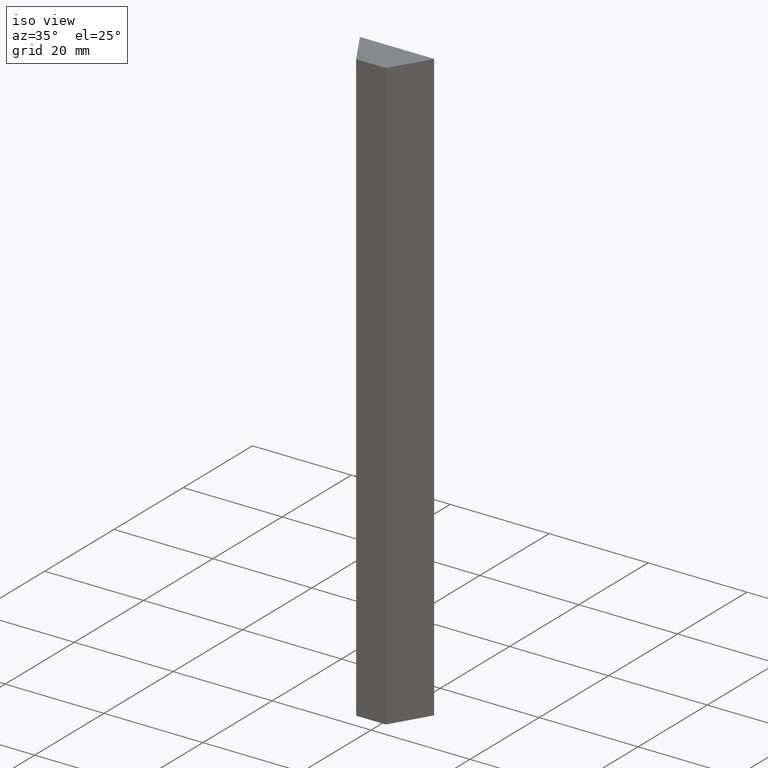
[diagram: clean part render]
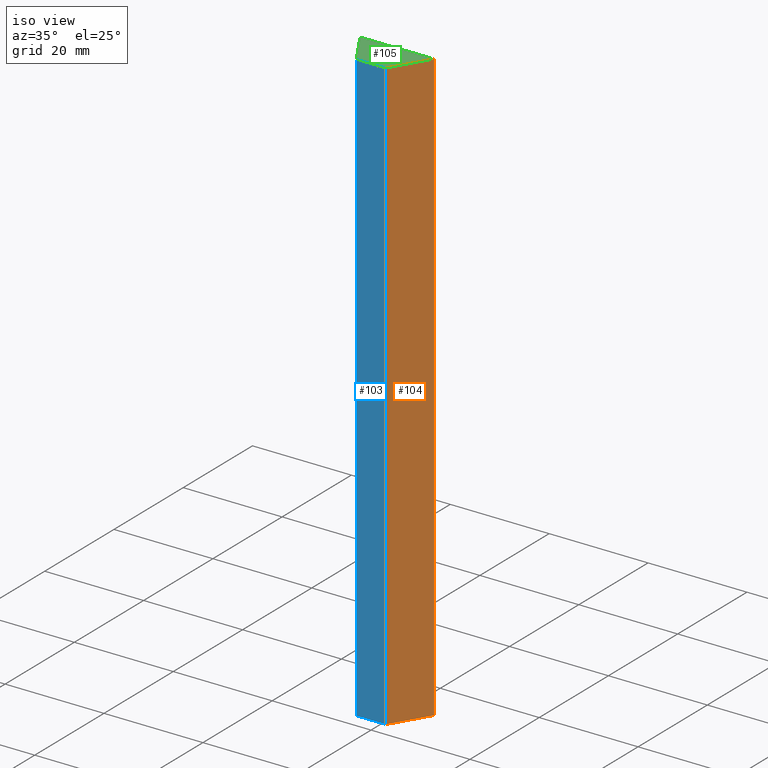
[diagram: same view with three faces highlighted in distinct colors, each labeled with its STEP entity id]
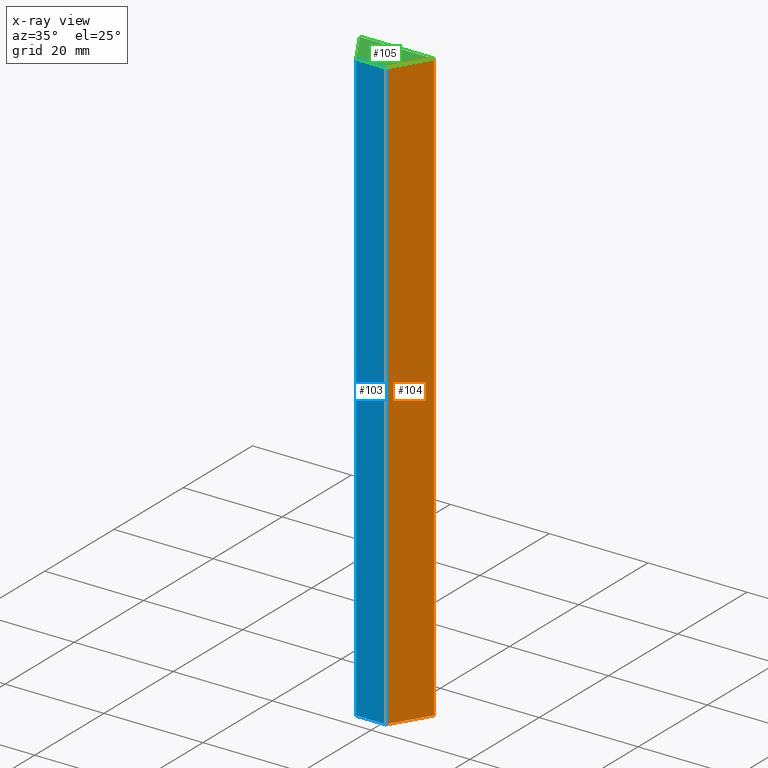
[diagram: x-ray of the same camera — body ghosted, the three highlighted faces saturated]
A machine part, iso view with three faces highlighted in distinct colors.
The next image is the same camera in x-ray (body ghosted, the three faces saturated) — at least one of them is partly hidden behind the body in this view.
Their STEP definitions:

[orange] entity #104 — the highlighted planar face has unit normal (0.8575, -0.5145, 0).
#18=FACE_OUTER_BOUND('',#24,.T.);
#24=EDGE_LOOP('',(#83,#84,#85,#86));
#28=LINE('',#165,#40);
#36=LINE('',#180,#48);
#37=LINE('',#182,#49);
#38=LINE('',#183,#50);
#40=VECTOR('',#138,10.);
#48=VECTOR('',#150,10.);
#49=VECTOR('',#153,10.);
#50=VECTOR('',#154,10.);
#51=VERTEX_POINT('',#161);
#53=VERTEX_POINT('',#164);
#57=VERTEX_POINT('',#176);
#58=VERTEX_POINT('',#178);
#60=EDGE_CURVE('',#51,#53,#28,.T.);
#68=EDGE_CURVE('',#57,#58,#36,.T.);
#69=EDGE_CURVE('',#57,#51,#37,.T.);
#70=EDGE_CURVE('',#53,#58,#38,.T.);
#83=ORIENTED_EDGE('',*,*,#69,.F.);
#84=ORIENTED_EDGE('',*,*,#68,.T.);
#85=ORIENTED_EDGE('',*,*,#70,.F.);
#86=ORIENTED_EDGE('',*,*,#60,.F.);
#98=PLANE('',#130);
#104=ADVANCED_FACE('',(#18),#98,.T.);
#130=AXIS2_PLACEMENT_3D('',#181,#151,#152);
#138=DIRECTION('',(0.,0.,-1.));
#150=DIRECTION('',(0.,0.,-1.));
#151=DIRECTION('center_axis',(0.857492925712544,-0.514495755427527,0.));
#152=DIRECTION('ref_axis',(-0.514495755427527,-0.857492925712544,0.));
#153=DIRECTION('',(0.514495755427527,0.857492925712544,0.));
#154=DIRECTION('',(-0.514495755427527,-0.857492925712544,0.));
#161=CARTESIAN_POINT('',(7.5,7.5,0.));
#164=CARTESIAN_POINT('',(7.5,7.5,-120.));
#165=CARTESIAN_POINT('',(7.5,7.5,0.));
#176=CARTESIAN_POINT('',(3.,0.,0.));
#178=CARTESIAN_POINT('',(3.,0.,-120.));
#180=CARTESIAN_POINT('',(3.,0.,0.));
#181=CARTESIAN_POINT('Origin',(7.5,7.5,0.));
#182=CARTESIAN_POINT('',(3.,0.,0.));
#183=CARTESIAN_POINT('',(3.,0.,-120.));

[blue] entity #103 — the highlighted planar face has unit normal (0, -1, 0).
#17=FACE_OUTER_BOUND('',#23,.T.);
#23=EDGE_LOOP('',(#79,#80,#81,#82));
#33=LINE('',#174,#45);
#34=LINE('',#177,#46);
#35=LINE('',#179,#47);
#36=LINE('',#180,#48);
#45=VECTOR('',#145,10.);
#46=VECTOR('',#148,10.);
#47=VECTOR('',#149,10.);
#48=VECTOR('',#150,10.);
#55=VERTEX_POINT('',#170);
#56=VERTEX_POINT('',#172);
#57=VERTEX_POINT('',#176);
#58=VERTEX_POINT('',#178);
#65=EDGE_CURVE('',#55,#56,#33,.T.);
#66=EDGE_CURVE('',#55,#57,#34,.T.);
#67=EDGE_CURVE('',#58,#56,#35,.T.);
#68=EDGE_CURVE('',#57,#58,#36,.T.);
#79=ORIENTED_EDGE('',*,*,#66,.F.);
#80=ORIENTED_EDGE('',*,*,#65,.T.);
#81=ORIENTED_EDGE('',*,*,#67,.F.);
#82=ORIENTED_EDGE('',*,*,#68,.F.);
#97=PLANE('',#129);
#103=ADVANCED_FACE('',(#17),#97,.T.);
#129=AXIS2_PLACEMENT_3D('',#175,#146,#147);
#145=DIRECTION('',(0.,0.,-1.));
#146=DIRECTION('center_axis',(0.,-1.,0.));
#147=DIRECTION('ref_axis',(-1.,0.,0.));
#148=DIRECTION('',(1.,0.,0.));
#149=DIRECTION('',(-1.,0.,0.));
#150=DIRECTION('',(0.,0.,-1.));
#170=CARTESIAN_POINT('',(-3.,0.,0.));
#172=CARTESIAN_POINT('',(-3.,0.,-120.));
#174=CARTESIAN_POINT('',(-3.,0.,0.));
#175=CARTESIAN_POINT('Origin',(3.,0.,0.));
#176=CARTESIAN_POINT('',(3.,0.,0.));
#177=CARTESIAN_POINT('',(-3.,0.,0.));
#178=CARTESIAN_POINT('',(3.,0.,-120.));
#179=CARTESIAN_POINT('',(-3.,0.,-120.));
#180=CARTESIAN_POINT('',(3.,0.,0.));

[green] entity #105 — the highlighted planar face has unit normal (0, 0, 1).
#19=FACE_OUTER_BOUND('',#25,.T.);
#25=EDGE_LOOP('',(#87,#88,#89,#90));
#27=LINE('',#163,#39);
#31=LINE('',#171,#43);
#34=LINE('',#177,#46);
#37=LINE('',#182,#49);
#39=VECTOR('',#137,10.);
#43=VECTOR('',#143,10.);
#46=VECTOR('',#148,10.);
#49=VECTOR('',#153,10.);
#51=VERTEX_POINT('',#161);
#52=VERTEX_POINT('',#162);
#55=VERTEX_POINT('',#170);
#57=VERTEX_POINT('',#176);
#59=EDGE_CURVE('',#51,#52,#27,.T.);
#63=EDGE_CURVE('',#52,#55,#31,.T.);
#66=EDGE_CURVE('',#55,#57,#34,.T.);
#69=EDGE_CURVE('',#57,#51,#37,.T.);
#87=ORIENTED_EDGE('',*,*,#69,.T.);
#88=ORIENTED_EDGE('',*,*,#59,.T.);
#89=ORIENTED_EDGE('',*,*,#63,.T.);
#90=ORIENTED_EDGE('',*,*,#66,.T.);
#99=PLANE('',#131);
#105=ADVANCED_FACE('',(#19),#99,.T.);
#131=AXIS2_PLACEMENT_3D('',#184,#155,#156);
#137=DIRECTION('',(-1.,0.,0.));
#143=DIRECTION('',(0.514495755427527,-0.857492925712544,0.));
#148=DIRECTION('',(1.,0.,0.));
#153=DIRECTION('',(0.514495755427527,0.857492925712544,0.));
#155=DIRECTION('center_axis',(0.,0.,1.));
#156=DIRECTION('ref_axis',(1.,0.,0.));
#161=CARTESIAN_POINT('',(7.5,7.5,0.));
#162=CARTESIAN_POINT('',(-7.5,7.5,0.));
#163=CARTESIAN_POINT('',(7.5,7.5,0.));
#170=CARTESIAN_POINT('',(-3.,0.,0.));
#171=CARTESIAN_POINT('',(-7.5,7.5,0.));
#176=CARTESIAN_POINT('',(3.,0.,0.));
#177=CARTESIAN_POINT('',(-3.,0.,0.));
#182=CARTESIAN_POINT('',(3.,0.,0.));
#184=CARTESIAN_POINT('Origin',(-1.11022302462516E-15,3.75,0.));